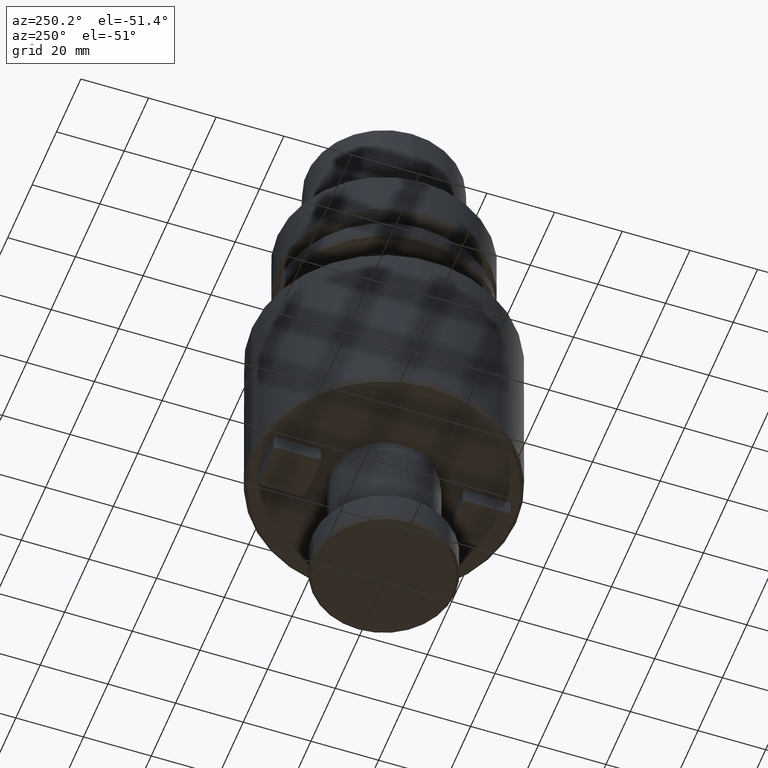
[diagram: clean part render]
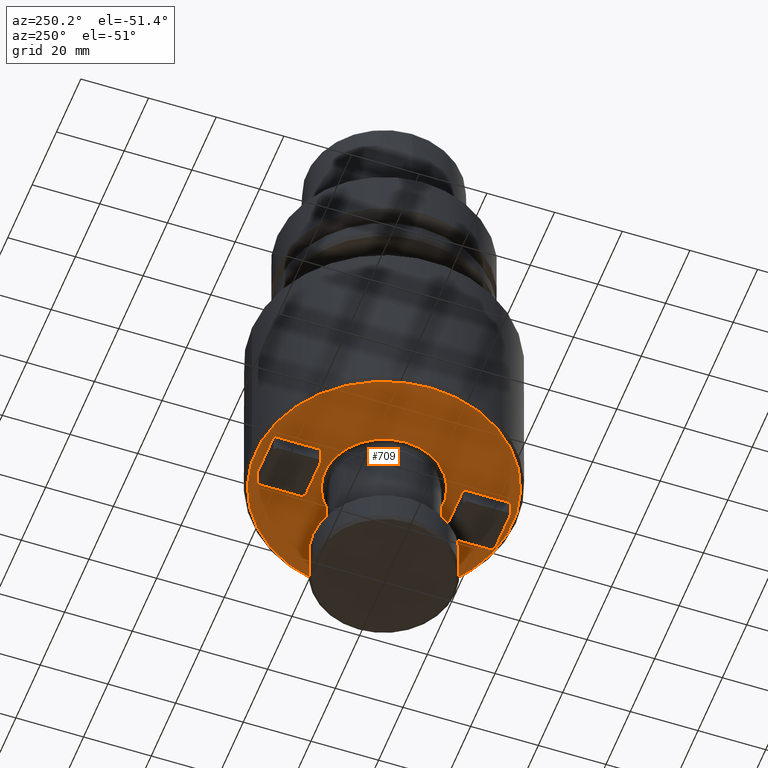
[diagram: same view with one face highlighted and labeled with its STEP entity id]
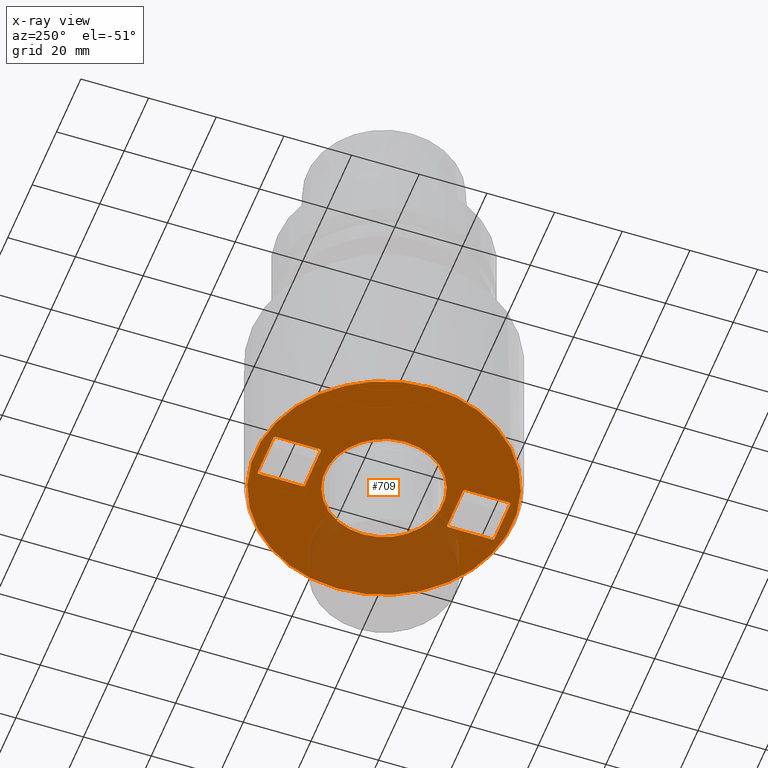
[diagram: x-ray of the same camera — body ghosted, the highlighted face saturated]
A machine part, auxiliary view. The second image highlights one B-rep face of the part: STEP entity #709.
The next image is the same camera in x-ray: the body ghosted, the highlighted face saturated — about 28% of this face is hidden behind the body in this view.
In plain terms, the highlighted planar face has unit normal (0, 0, -1).
Its self-contained STEP definition (entity closure, byte-faithful):
#30 = EDGE_CURVE ( 'NONE', #808, #2679, #2949, .T. ) ;
#51 = AXIS2_PLACEMENT_3D ( 'NONE', #1989, #385, #2261 ) ;
#55 = LINE ( 'NONE', #190, #2787 ) ;
#80 = DIRECTION ( 'NONE',  ( 0.0000000000000000000, -0.0000000000000000000, 1.000000000000000000 ) ) ;
#90 = CARTESIAN_POINT ( 'NONE',  ( -7.000000000000000900, 21.40000000000000900, -100.0000000000000000 ) ) ;
#104 = EDGE_CURVE ( 'NONE', #1227, #945, #3205, .T. ) ;
#118 = ORIENTED_EDGE ( 'NONE', *, *, #1990, .T. ) ;
#123 = VERTEX_POINT ( 'NONE', #179 ) ;
#144 = EDGE_CURVE ( 'NONE', #717, #774, #3292, .T. ) ;
#169 = CARTESIAN_POINT ( 'NONE',  ( -37.99999999999999300, 8.184337128670923700E-015, -99.99999999999998600 ) ) ;
#179 = CARTESIAN_POINT ( 'NONE',  ( 37.99999999999999300, 3.469446951953614200E-015, -99.99999999999998600 ) ) ;
#190 = CARTESIAN_POINT ( 'NONE',  ( 7.000000000000000900, -21.40000000000000600, -100.0000000000000000 ) ) ;
#204 = CARTESIAN_POINT ( 'NONE',  ( -6.599999999999999600, -35.00000000000000700, -100.0000000000000000 ) ) ;
#215 = CARTESIAN_POINT ( 'NONE',  ( 6.599999999999999600, -35.00000000000000700, -100.0000000000000000 ) ) ;
#236 = ORIENTED_EDGE ( 'NONE', *, *, #2023, .T. ) ;
#239 = VERTEX_POINT ( 'NONE', #804 ) ;
#245 = DIRECTION ( 'NONE',  ( -0.7071067811865474600, -0.7071067811865474600, -0.0000000000000000000 ) ) ;
#279 = VECTOR ( 'NONE', #2210, 1000.000000000000000 ) ;
#297 = DIRECTION ( 'NONE',  ( 0.0000000000000000000, -0.0000000000000000000, 1.000000000000000000 ) ) ;
#300 = EDGE_CURVE ( 'NONE', #774, #2703, #1627, .T. ) ;
#336 = CARTESIAN_POINT ( 'NONE',  ( 7.000000000000000900, 38.00000000000000000, -100.0000000000000000 ) ) ;
#348 = VERTEX_POINT ( 'NONE', #533 ) ;
#385 = DIRECTION ( 'NONE',  ( -0.0000000000000000000, -0.0000000000000000000, 1.000000000000000000 ) ) ;
#402 = EDGE_CURVE ( 'NONE', #2679, #808, #743, .T. ) ;
#444 = VERTEX_POINT ( 'NONE', #1116 ) ;
#464 = CIRCLE ( 'NONE', #3051, 37.99999999999999300 ) ;
#510 = DIRECTION ( 'NONE',  ( -1.000000000000000000, 0.0000000000000000000, -0.0000000000000000000 ) ) ;
#518 = ORIENTED_EDGE ( 'NONE', *, *, #1650, .T. ) ;
#531 = VERTEX_POINT ( 'NONE', #2506 ) ;
#533 = CARTESIAN_POINT ( 'NONE',  ( 7.000000000000001800, -21.40000000000000900, -100.0000000000000000 ) ) ;
#585 = ORIENTED_EDGE ( 'NONE', *, *, #2245, .T. ) ;
#597 = CARTESIAN_POINT ( 'NONE',  ( 6.600000000000000500, 21.00000000000000400, -100.0000000000000000 ) ) ;
#620 = EDGE_CURVE ( 'NONE', #2570, #239, #872, .T. ) ;
#648 = LINE ( 'NONE', #1528, #1366 ) ;
#674 = CARTESIAN_POINT ( 'NONE',  ( -7.000000000000000900, 21.40000000000000600, -100.0000000000000000 ) ) ;
#704 = VERTEX_POINT ( 'NONE', #3081 ) ;
#709 = ADVANCED_FACE ( 'NONE', ( #2418, #1001, #2345, #1630 ), #1783, .T. ) ;
#717 = VERTEX_POINT ( 'NONE', #3341 ) ;
#743 = CIRCLE ( 'NONE', #1558, 17.47999999999999700 ) ;
#774 = VERTEX_POINT ( 'NONE', #2850 ) ;
#795 = DIRECTION ( 'NONE',  ( 1.000000000000000000, -0.0000000000000000000, 0.0000000000000000000 ) ) ;
#802 = ORIENTED_EDGE ( 'NONE', *, *, #144, .T. ) ;
#804 = CARTESIAN_POINT ( 'NONE',  ( -6.999999999999995600, -34.60000000000002300, -100.0000000000000000 ) ) ;
#808 = VERTEX_POINT ( 'NONE', #1924 ) ;
#827 = DIRECTION ( 'NONE',  ( -1.000000000000000000, 0.0000000000000000000, -0.0000000000000000000 ) ) ;
#872 = LINE ( 'NONE', #2816, #3144 ) ;
#927 = VERTEX_POINT ( 'NONE', #597 ) ;
#945 = VERTEX_POINT ( 'NONE', #90 ) ;
#954 = VECTOR ( 'NONE', #2077, 1000.000000000000100 ) ;
#959 = LINE ( 'NONE', #215, #2384 ) ;
#965 = CARTESIAN_POINT ( 'NONE',  ( 0.0000000000000000000, 38.00000000000000000, -100.0000000000000000 ) ) ;
#980 = DIRECTION ( 'NONE',  ( 0.0000000000000000000, 4.998558363866749900E-017, -1.000000000000000000 ) ) ;
#996 = LINE ( 'NONE', #336, #279 ) ;
#1001 = FACE_BOUND ( 'NONE', #3423, .T. ) ;
#1022 = EDGE_CURVE ( 'NONE', #927, #3410, #1033, .T. ) ;
#1033 = LINE ( 'NONE', #2244, #1498 ) ;
#1116 = CARTESIAN_POINT ( 'NONE',  ( -6.599999999999999600, -35.00000000000000700, -100.0000000000000000 ) ) ;
#1201 = ORIENTED_EDGE ( 'NONE', *, *, #1300, .T. ) ;
#1225 = EDGE_CURVE ( 'NONE', #2267, #1312, #959, .T. ) ;
#1227 = VERTEX_POINT ( 'NONE', #2354 ) ;
#1232 = CARTESIAN_POINT ( 'NONE',  ( 6.599999999999999600, 35.00000000000000700, -100.0000000000000000 ) ) ;
#1270 = EDGE_LOOP ( 'NONE', ( #2336, #3411 ) ) ;
#1286 = VECTOR ( 'NONE', #3049, 1000.000000000000000 ) ;
#1300 = EDGE_CURVE ( 'NONE', #531, #2570, #2823, .T. ) ;
#1311 = CARTESIAN_POINT ( 'NONE',  ( -7.000000000000000000, -21.40000000000000600, -100.0000000000000000 ) ) ;
#1312 = VERTEX_POINT ( 'NONE', #1596 ) ;
#1327 = VECTOR ( 'NONE', #510, 1000.000000000000000 ) ;
#1344 = VECTOR ( 'NONE', #795, 1000.000000000000000 ) ;
#1351 = CARTESIAN_POINT ( 'NONE',  ( 6.599999999999999600, -21.00000000000000400, -100.0000000000000000 ) ) ;
#1366 = VECTOR ( 'NONE', #3375, 1000.000000000000000 ) ;
#1369 = DIRECTION ( 'NONE',  ( -0.0000000000000000000, -0.0000000000000000000, 1.000000000000000000 ) ) ;
#1377 = ORIENTED_EDGE ( 'NONE', *, *, #2067, .T. ) ;
#1392 = EDGE_LOOP ( 'NONE', ( #2479, #1201, #3082, #585, #2887, #2170, #518, #2648 ) ) ;
#1498 = VECTOR ( 'NONE', #2493, 1000.000000000000100 ) ;
#1522 = DIRECTION ( 'NONE',  ( -0.7071067811865483500, 0.7071067811865468000, -0.0000000000000000000 ) ) ;
#1527 = DIRECTION ( 'NONE',  ( 0.7071067811865489100, 0.7071067811865460200, -0.0000000000000000000 ) ) ;
#1528 = CARTESIAN_POINT ( 'NONE',  ( 0.0000000000000000000, 21.00000000000000400, -100.0000000000000000 ) ) ;
#1558 = AXIS2_PLACEMENT_3D ( 'NONE', #2960, #1369, #3214 ) ;
#1577 = CARTESIAN_POINT ( 'NONE',  ( -7.000000000000000000, -21.40000000000000900, -100.0000000000000000 ) ) ;
#1582 = LINE ( 'NONE', #204, #954 ) ;
#1596 = CARTESIAN_POINT ( 'NONE',  ( 6.999999999999995600, -34.60000000000002300, -100.0000000000000000 ) ) ;
#1627 = LINE ( 'NONE', #2687, #2342 ) ;
#1630 = FACE_BOUND ( 'NONE', #1766, .T. ) ;
#1650 = EDGE_CURVE ( 'NONE', #1312, #348, #1774, .T. ) ;
#1674 = CARTESIAN_POINT ( 'NONE',  ( 0.0000000000000000000, 3.469446951953614200E-015, -99.99999999999998600 ) ) ;
#1718 = ORIENTED_EDGE ( 'NONE', *, *, #402, .T. ) ;
#1730 = VERTEX_POINT ( 'NONE', #169 ) ;
#1766 = EDGE_LOOP ( 'NONE', ( #1377, #2526, #118, #802, #2076, #236, #2775, #2901 ) ) ;
#1774 = LINE ( 'NONE', #2789, #3076 ) ;
#1783 = PLANE ( 'NONE',  #3342 ) ;
#1808 = ORIENTED_EDGE ( 'NONE', *, *, #30, .T. ) ;
#1893 = EDGE_CURVE ( 'NONE', #123, #1730, #464, .T. ) ;
#1906 = CARTESIAN_POINT ( 'NONE',  ( 0.0000000000000000000, 3.469446951953614200E-015, -99.99999999999998600 ) ) ;
#1924 = CARTESIAN_POINT ( 'NONE',  ( 17.48000000000000800, 5.610129556863188900E-015, -100.0000000000000000 ) ) ;
#1943 = DIRECTION ( 'NONE',  ( 1.000000000000000000, 0.0000000000000000000, 0.0000000000000000000 ) ) ;
#1949 = EDGE_CURVE ( 'NONE', #1730, #123, #2353, .T. ) ;
#1983 = VECTOR ( 'NONE', #2302, 1000.000000000000000 ) ;
#1989 = CARTESIAN_POINT ( 'NONE',  ( 0.0000000000000000000, 3.469446951953614200E-015, -100.0000000000000000 ) ) ;
#1990 = EDGE_CURVE ( 'NONE', #3410, #717, #996, .T. ) ;
#2023 = EDGE_CURVE ( 'NONE', #2703, #1227, #2858, .T. ) ;
#2050 = VECTOR ( 'NONE', #2387, 1000.000000000000100 ) ;
#2063 = LINE ( 'NONE', #2398, #1344 ) ;
#2067 = EDGE_CURVE ( 'NONE', #704, #927, #648, .T. ) ;
#2076 = ORIENTED_EDGE ( 'NONE', *, *, #300, .T. ) ;
#2077 = DIRECTION ( 'NONE',  ( 0.7071067811865489100, -0.7071067811865460200, -0.0000000000000000000 ) ) ;
#2087 = LINE ( 'NONE', #674, #1286 ) ;
#2114 = EDGE_CURVE ( 'NONE', #945, #704, #2087, .T. ) ;
#2125 = VECTOR ( 'NONE', #245, 1000.000000000000100 ) ;
#2144 = CARTESIAN_POINT ( 'NONE',  ( -17.48000000000000800, 3.469446951953614200E-015, -100.0000000000000000 ) ) ;
#2163 = VECTOR ( 'NONE', #2846, 1000.000000000000100 ) ;
#2165 = DIRECTION ( 'NONE',  ( 1.000000000000000000, 0.0000000000000000000, 0.0000000000000000000 ) ) ;
#2170 = ORIENTED_EDGE ( 'NONE', *, *, #1225, .T. ) ;
#2210 = DIRECTION ( 'NONE',  ( 0.0000000000000000000, 1.000000000000000000, 4.998558363866749900E-017 ) ) ;
#2244 = CARTESIAN_POINT ( 'NONE',  ( 7.000000000000000000, 21.40000000000000600, -100.0000000000000000 ) ) ;
#2245 = EDGE_CURVE ( 'NONE', #239, #444, #1582, .T. ) ;
#2261 = DIRECTION ( 'NONE',  ( -1.000000000000000000, 0.0000000000000000000, 0.0000000000000000000 ) ) ;
#2267 = VERTEX_POINT ( 'NONE', #3366 ) ;
#2302 = DIRECTION ( 'NONE',  ( -0.0000000000000000000, -1.000000000000000000, -4.998558363866749900E-017 ) ) ;
#2336 = ORIENTED_EDGE ( 'NONE', *, *, #1893, .F. ) ;
#2342 = VECTOR ( 'NONE', #827, 1000.000000000000000 ) ;
#2345 = FACE_OUTER_BOUND ( 'NONE', #1270, .T. ) ;
#2353 = CIRCLE ( 'NONE', #3403, 37.99999999999999300 ) ;
#2354 = CARTESIAN_POINT ( 'NONE',  ( -6.999999999999995600, 34.60000000000002300, -100.0000000000000000 ) ) ;
#2374 = EDGE_CURVE ( 'NONE', #2690, #531, #2655, .T. ) ;
#2384 = VECTOR ( 'NONE', #1527, 1000.000000000000100 ) ;
#2387 = DIRECTION ( 'NONE',  ( -0.7071067811865489100, 0.7071067811865460200, -0.0000000000000000000 ) ) ;
#2398 = CARTESIAN_POINT ( 'NONE',  ( 0.0000000000000000000, -35.00000000000000700, -100.0000000000000000 ) ) ;
#2418 = FACE_BOUND ( 'NONE', #1392, .T. ) ;
#2479 = ORIENTED_EDGE ( 'NONE', *, *, #2374, .T. ) ;
#2493 = DIRECTION ( 'NONE',  ( 0.7071067811865474600, 0.7071067811865474600, -0.0000000000000000000 ) ) ;
#2506 = CARTESIAN_POINT ( 'NONE',  ( -6.599999999999999600, -21.00000000000000400, -100.0000000000000000 ) ) ;
#2526 = ORIENTED_EDGE ( 'NONE', *, *, #1022, .T. ) ;
#2570 = VERTEX_POINT ( 'NONE', #1577 ) ;
#2597 = CARTESIAN_POINT ( 'NONE',  ( -6.999999999999998200, 38.00000000000000000, -100.0000000000000000 ) ) ;
#2648 = ORIENTED_EDGE ( 'NONE', *, *, #3154, .T. ) ;
#2655 = LINE ( 'NONE', #3415, #1327 ) ;
#2679 = VERTEX_POINT ( 'NONE', #2144 ) ;
#2687 = CARTESIAN_POINT ( 'NONE',  ( 0.0000000000000000000, 35.00000000000000700, -100.0000000000000000 ) ) ;
#2690 = VERTEX_POINT ( 'NONE', #1351 ) ;
#2703 = VERTEX_POINT ( 'NONE', #3196 ) ;
#2767 = EDGE_CURVE ( 'NONE', #444, #2267, #2063, .T. ) ;
#2775 = ORIENTED_EDGE ( 'NONE', *, *, #104, .T. ) ;
#2787 = VECTOR ( 'NONE', #1522, 1000.000000000000000 ) ;
#2789 = CARTESIAN_POINT ( 'NONE',  ( 6.999999999999998200, 38.00000000000000000, -100.0000000000000000 ) ) ;
#2816 = CARTESIAN_POINT ( 'NONE',  ( -7.000000000000000900, 38.00000000000000000, -100.0000000000000000 ) ) ;
#2823 = LINE ( 'NONE', #1311, #2125 ) ;
#2831 = DIRECTION ( 'NONE',  ( 0.0000000000000000000, 1.000000000000000000, 4.998558363866749900E-017 ) ) ;
#2846 = DIRECTION ( 'NONE',  ( -0.7071067811865489100, -0.7071067811865460200, -0.0000000000000000000 ) ) ;
#2850 = CARTESIAN_POINT ( 'NONE',  ( 6.599999999999999600, 35.00000000000000700, -100.0000000000000000 ) ) ;
#2858 = LINE ( 'NONE', #3365, #2163 ) ;
#2887 = ORIENTED_EDGE ( 'NONE', *, *, #2767, .T. ) ;
#2901 = ORIENTED_EDGE ( 'NONE', *, *, #2114, .T. ) ;
#2949 = CIRCLE ( 'NONE', #51, 17.47999999999999700 ) ;
#2959 = CARTESIAN_POINT ( 'NONE',  ( 6.999999999999999100, 21.40000000000000600, -100.0000000000000000 ) ) ;
#2960 = CARTESIAN_POINT ( 'NONE',  ( 0.0000000000000000000, 3.469446951953614200E-015, -100.0000000000000000 ) ) ;
#3046 = DIRECTION ( 'NONE',  ( 0.0000000000000000000, 1.000000000000000000, 4.998558363866749900E-017 ) ) ;
#3049 = DIRECTION ( 'NONE',  ( 0.7071067811865483500, -0.7071067811865468000, -0.0000000000000000000 ) ) ;
#3051 = AXIS2_PLACEMENT_3D ( 'NONE', #1906, #297, #2165 ) ;
#3073 = DIRECTION ( 'NONE',  ( -0.0000000000000000000, -1.000000000000000000, -4.998558363866749900E-017 ) ) ;
#3076 = VECTOR ( 'NONE', #3046, 1000.000000000000000 ) ;
#3081 = CARTESIAN_POINT ( 'NONE',  ( -6.599999999999999600, 21.00000000000000400, -100.0000000000000000 ) ) ;
#3082 = ORIENTED_EDGE ( 'NONE', *, *, #620, .T. ) ;
#3144 = VECTOR ( 'NONE', #3073, 1000.000000000000000 ) ;
#3154 = EDGE_CURVE ( 'NONE', #348, #2690, #55, .T. ) ;
#3196 = CARTESIAN_POINT ( 'NONE',  ( -6.599999999999998800, 35.00000000000000700, -100.0000000000000000 ) ) ;
#3205 = LINE ( 'NONE', #2597, #1983 ) ;
#3214 = DIRECTION ( 'NONE',  ( -1.000000000000000000, 0.0000000000000000000, 0.0000000000000000000 ) ) ;
#3292 = LINE ( 'NONE', #1232, #2050 ) ;
#3341 = CARTESIAN_POINT ( 'NONE',  ( 6.999999999999995600, 34.60000000000002300, -100.0000000000000000 ) ) ;
#3342 = AXIS2_PLACEMENT_3D ( 'NONE', #965, #980, #2831 ) ;
#3365 = CARTESIAN_POINT ( 'NONE',  ( -6.599999999999999600, 35.00000000000000700, -100.0000000000000000 ) ) ;
#3366 = CARTESIAN_POINT ( 'NONE',  ( 6.599999999999999600, -35.00000000000000700, -100.0000000000000000 ) ) ;
#3375 = DIRECTION ( 'NONE',  ( 1.000000000000000000, -0.0000000000000000000, 0.0000000000000000000 ) ) ;
#3403 = AXIS2_PLACEMENT_3D ( 'NONE', #1674, #80, #1943 ) ;
#3410 = VERTEX_POINT ( 'NONE', #2959 ) ;
#3411 = ORIENTED_EDGE ( 'NONE', *, *, #1949, .F. ) ;
#3415 = CARTESIAN_POINT ( 'NONE',  ( 0.0000000000000000000, -21.00000000000000400, -100.0000000000000000 ) ) ;
#3423 = EDGE_LOOP ( 'NONE', ( #1718, #1808 ) ) ;